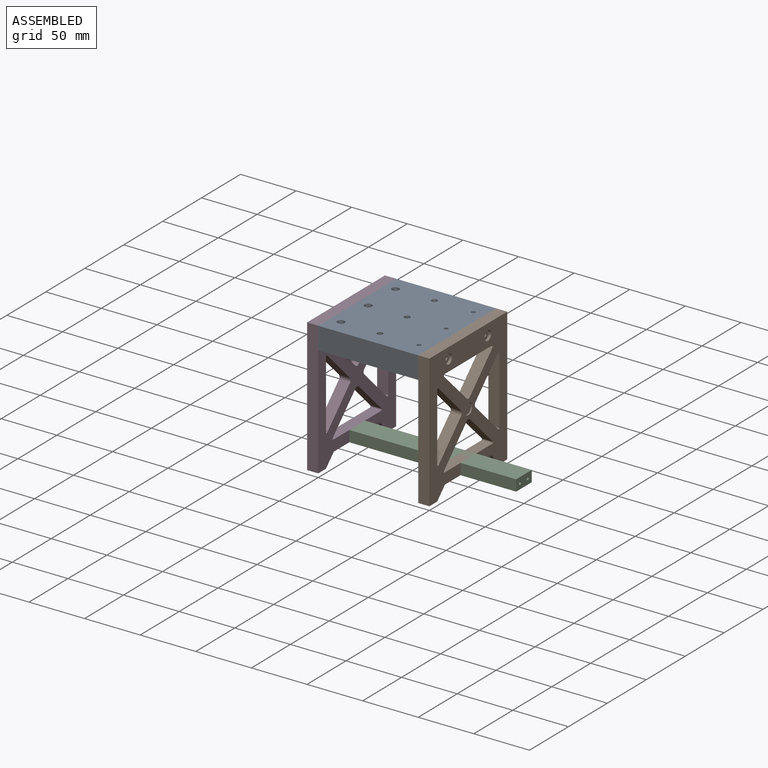
[diagram: assembled view]
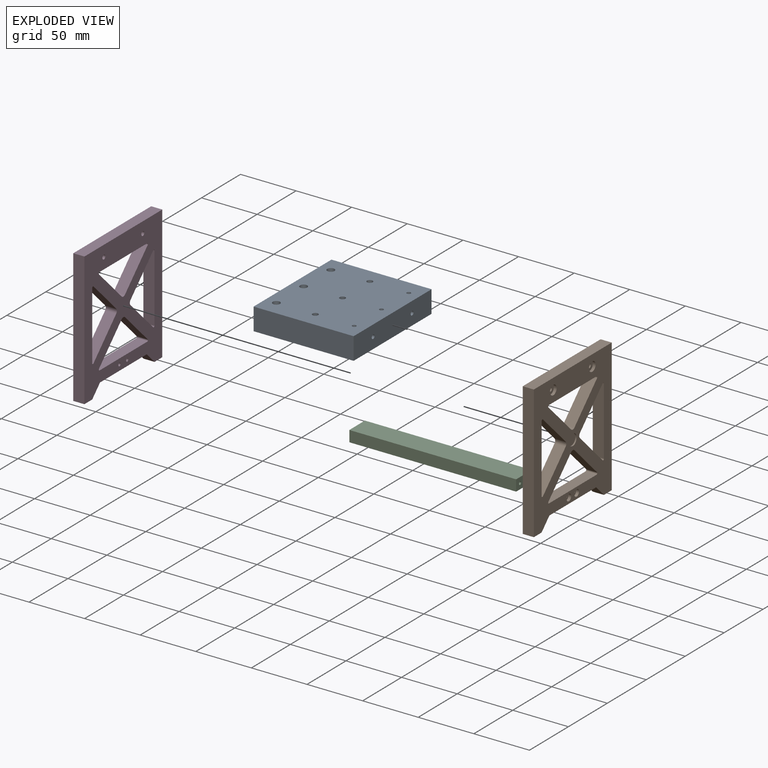
[diagram: exploded view]
GUIDED TOUR — MATED ASSEMBLY (Onshape document b0703bcb60bac2b01d767f9e, AutoMate assembly b0703bcb60bac2b01d767f9e_892648df07d9bb5ad0cc8fc4_770ecd6f2d148a60143b7bbd_default)

This assembly has 4 components, labeled P0..P3 below (a component is one placed occurrence of a part; the same part can appear more than once), held together by 3 mates. A mate is a constraint between two components; its type names the relative motion it leaves free:
  FASTENED — locks the two components together rigidly (no relative motion).
Axis/direction vectors are unit vectors and 'through' points are millimeter coordinates, both in the assembly's world frame.

MATES
  1. FASTENED "Fastened 2": P1 <-> P0, direction (-1.000, 0.000, 0.000) through (40.00, 25.00, 100.00) mm
  2. FASTENED "Fastened 3": P3 <-> P2, direction (1.000, 0.000, 0.000) through (-50.00, -5.00, 5.00) mm
  3. FASTENED "Fastened 1": P0 <-> P3, direction (-1.000, 0.000, 0.000) through (-50.00, -25.00, 100.00) mm

ASSEMBLY ORDER
  1. P2 — the base component [order verified]
  2. P1 [order verified]
  3. P0 [order verified]
  4. P3 [order verified]
Order-tag legend:
  [order verified] — this step's position reverses a verified removal order: the component was checked to insert without passing through the ones already placed.

Of the 4 components, 4 carry the full construction recipe — the FeatureScript program that regenerates the part's solid from scratch; the rest are supplied as boundary geometry only.
Each toured component is shown spotlighted twice — in the assembled view, then in the exploded view, where a leader line traces a displaced component back to its assembled socket (saturated green if recipe-attached, orange if geometry-only; every other component desaturated gray) — followed by its recipe or geometry summary and the mates that hold it.
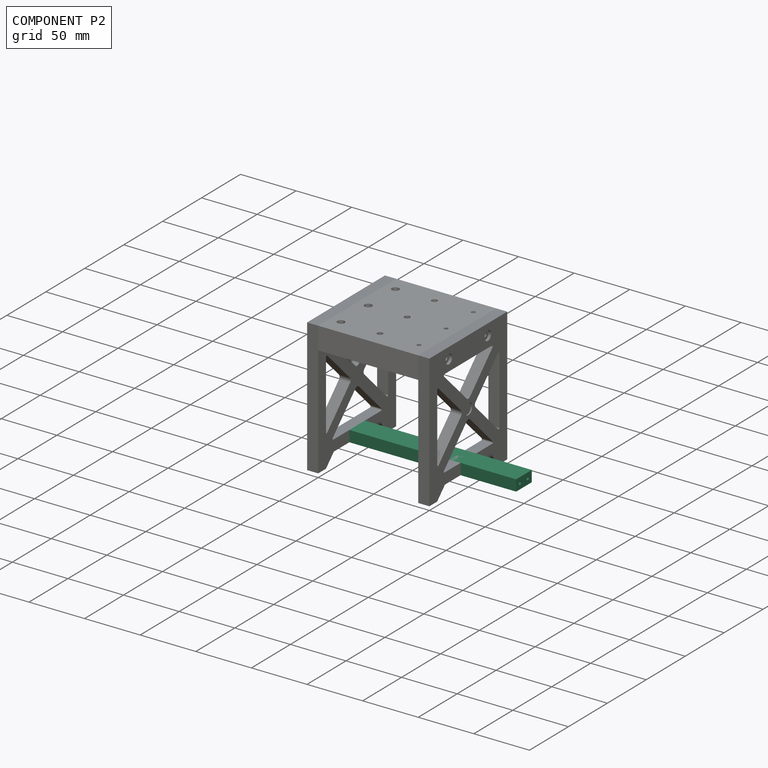
[diagram: component P2 — assembled]
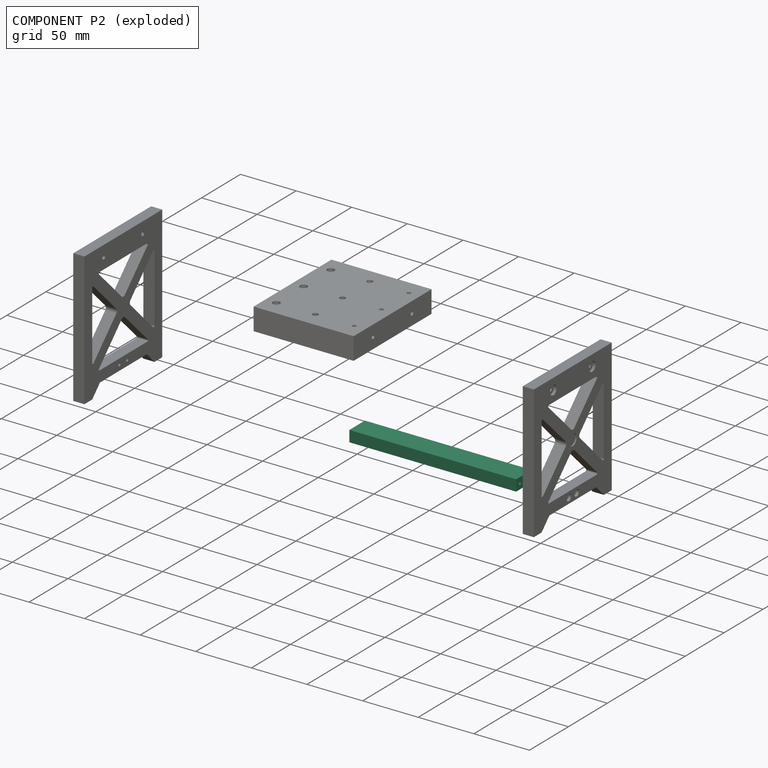
[diagram: component P2 — exploded]
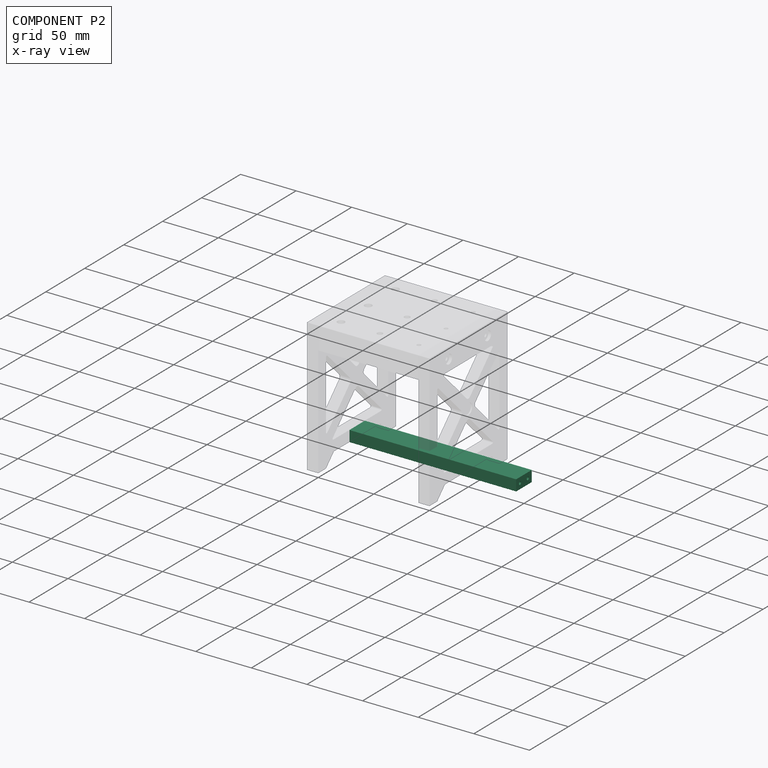
[diagram: component P2 — x-ray view]
COMPONENT P2 — recipe-attached (CADFS 00745035, mesh-verified: the recipe's output STEP matches this component's geometry to below the mesh-comparison resolution (tessellation chordal tolerance ~0.227 mm)).
Held by: FASTENED mate "Fastened 3" to P3.
Construction recipe (FeatureScript — the CAD program that rebuilds this solid; sketch coordinates are in the units given by the * unit suffixes, e.g. mm):

FeatureScript 1511;
import(path : "onshape/std/geometry.fs", version : "1511.0");
import(path : "onshape/std/common.fs", version : "1511.0");
const mm = millimeter;
const VERTEX = EntityType.VERTEX;
const EDGE = EntityType.EDGE;
const FACE = EntityType.FACE;
const BODY = EntityType.BODY;
function v(x, y){return vector(x, y);}
function OD(order){return orderDisambiguation(order);}
function OSD(set){return originalSetDisambiguation(set);}
function TD(topology){return topologyDisambiguation(topology);}
function TDD(query){return trueDependencyDisambiguation(query);}
function sQuery(a, b, c) {return sketchEntityQuery(a, b, c);}

annotation { "Feature Type Name" : "Feature", "Feature Type Description" : "" }
export const myFeature = defineFeature(function(context is Context, id is Id, definition is map)
    precondition{}
    {
        {
            var Q0;
            Q0=qCreatedBy(makeId("Top.planeOp"),FACE);
            var sketch = newSketch(context, id + "F0", { "sketchPlane" : qUnion([Q0])});
            skLineSegment(sketch, "E0.bottom", {"start": v(75, -10) * mm, "end": v(-75, -10) * mm});
            skLineSegment(sketch, "E0.top", {"start": v(75, 10) * mm, "end": v(-75, 10) * mm});
            skLineSegment(sketch, "E0.left", {"start": v(75, -10) * mm, "end": v(75, 10) * mm});
            skLineSegment(sketch, "E0.right", {"start": v(-75, -10) * mm, "end": v(-75, 10) * mm});
            skPoint(sketch, "E0.middle", {"position": v(0, 0) * mm});
            skSolve(sketch);
        }
        {
            var Q0;
            Q0=makeQuery(id+"F0.imprint","IMPRINT",FACE,{"disambiguationData":[TD([[makeQuery(id+"F0.imprint","IMPRINT",EDGE,{"derivedFrom":sQuery(id+"F0.wireOp",EDGE,"E0.bottom")}),-1.0]])]});
            extrude(context, id + "F1", {"entities" : qUnion([Q0]), "depth" : 10 * mm, "offsetDistance" : 25 * mm});
        }
        {
            var Q0;
            Q0=makeQuery(id+"F1.opExtrude","SWEPT_FACE",FACE,{"disambiguationData":[OSD([sQuery(id+"F0.wireOp",EDGE,"E0.right")])]});
            var sketch = newSketch(context, id + "F2", { "sketchPlane" : qUnion([Q0])});
            skLineSegment(sketch, "E1", {"start": v(-10, 5) * mm, "end": v(10, 5) * mm, "construction": true});
            skPoint(sketch, "E2", {"position": v(-5, 5) * mm});
            skPoint(sketch, "E3", {"position": v(5, 5) * mm});
            skSolve(sketch);
        }
        {
            var Q0;
            Q0=sQuery(id+"F2.wireOp",VERTEX,"E2");
            var Q1;
            Q1=sQuery(id+"F2.wireOp",VERTEX,"E3");
            var Q2;
            Q2=makeQuery(id+"F1.opExtrude","SWEPT_BODY",BODY,{"disambiguationData":[OSD([sQuery(id+"F0.wireOp",EDGE,"E0.bottom"),sQuery(id+"F0.wireOp",EDGE,"E0.top"),sQuery(id+"F0.wireOp",EDGE,"E0.left"),sQuery(id+"F0.wireOp",EDGE,"E0.right")])]});
            hole(context, id + "F3", {"style" : HoleStyle.SIMPLE, "endStyle" : HoleEndStyle.BLIND, "holeDiameter" : 2.8 * mm, "majorDiameter" : 5 * mm, "holeDepth" : 7 * mm, "isTappedThrough" : true, "tappedDepth" : 6 * mm, "tapClearance" : 3, "locations" : qUnion([Q0, Q1]), "scope" : qUnion([Q2])});
        }
        {
            var Q0;
            Q0=makeQuery(id+"F1.opExtrude","SWEPT_FACE",FACE,{"disambiguationData":[OSD([sQuery(id+"F0.wireOp",EDGE,"E0.left")])]});
            var sketch = newSketch(context, id + "F4", { "sketchPlane" : qUnion([Q0])});
            skPoint(sketch, "E4", {"position": v(-5, 5) * mm});
            skPoint(sketch, "E4.positionSnap0", {"position": v(-10, 5) * mm});
            skPoint(sketch, "E5", {"position": v(5, 5) * mm});
            skPoint(sketch, "E5.positionSnap0", {"position": v(10, 5) * mm});
            skSolve(sketch);
        }
        {
            var Q0;
            Q0=sQuery(id+"F4.wireOp",VERTEX,"E4");
            var Q1;
            Q1=sQuery(id+"F4.wireOp",VERTEX,"E5");
            var Q2;
            Q2=makeQuery(id+"F1.opExtrude","SWEPT_BODY",BODY,{"disambiguationData":[OSD([sQuery(id+"F0.wireOp",EDGE,"E0.bottom"),sQuery(id+"F0.wireOp",EDGE,"E0.top"),sQuery(id+"F0.wireOp",EDGE,"E0.left"),sQuery(id+"F0.wireOp",EDGE,"E0.right")])]});
            hole(context, id + "F5", {"style" : HoleStyle.SIMPLE, "endStyle" : HoleEndStyle.BLIND, "holeDiameter" : 2.8 * mm, "majorDiameter" : 5 * mm, "holeDepth" : 7 * mm, "isTappedThrough" : true, "tappedDepth" : 6 * mm, "tapClearance" : 3, "locations" : qUnion([Q0, Q1]), "scope" : qUnion([Q2])});
        }
    });
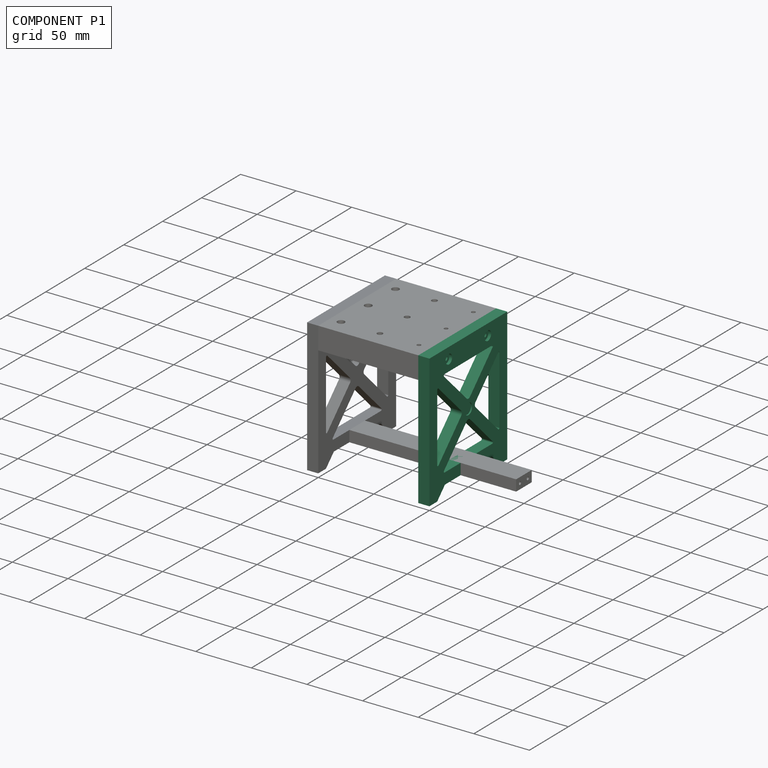
[diagram: component P1 — assembled]
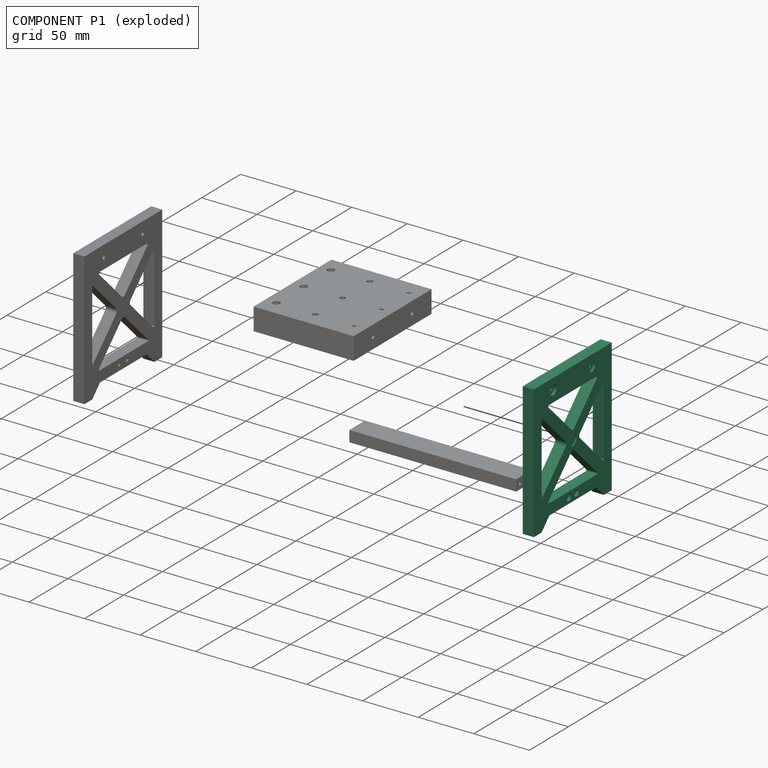
[diagram: component P1 — exploded]
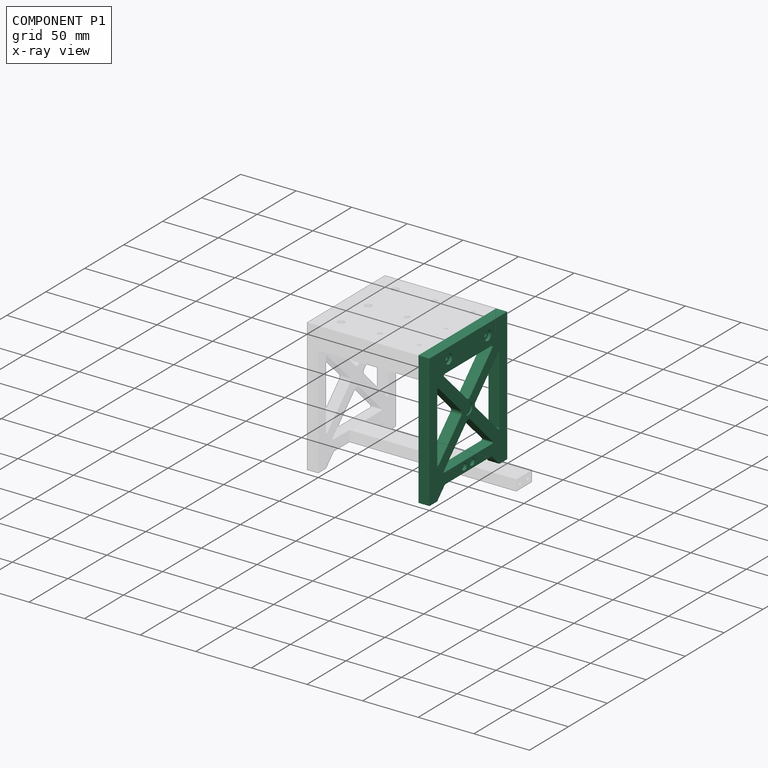
[diagram: component P1 — x-ray view]
COMPONENT P1 — recipe-attached (CADFS 00745030, mesh-verified: the recipe's output STEP matches this component's geometry to below the mesh-comparison resolution (tessellation chordal tolerance ~0.235 mm)).
Held by: FASTENED mate "Fastened 2" to P0.
Construction recipe (FeatureScript — the CAD program that rebuilds this solid; sketch coordinates are in the units given by the * unit suffixes, e.g. mm):

FeatureScript 1511;
import(path : "onshape/std/geometry.fs", version : "1511.0");
import(path : "onshape/std/common.fs", version : "1511.0");
const mm = millimeter;
const VERTEX = EntityType.VERTEX;
const EDGE = EntityType.EDGE;
const FACE = EntityType.FACE;
const BODY = EntityType.BODY;
function v(x, y){return vector(x, y);}
function OD(order){return orderDisambiguation(order);}
function OSD(set){return originalSetDisambiguation(set);}
function TD(topology){return topologyDisambiguation(topology);}
function TDD(query){return trueDependencyDisambiguation(query);}
function sQuery(a, b, c) {return sketchEntityQuery(a, b, c);}

annotation { "Feature Type Name" : "Feature", "Feature Type Description" : "" }
export const myFeature = defineFeature(function(context is Context, id is Id, definition is map)
    precondition{}
    {
        {
            var Q0;
            Q0=qCreatedBy(makeId("Right.planeOp"),FACE);
            var sketch = newSketch(context, id + "F0", { "sketchPlane" : qUnion([Q0])});
            skLineSegment(sketch, "E0.bottom", {"start": v(50, -60) * mm, "end": v(40.05, -60) * mm});
            skLineSegment(sketch, "E0.top", {"start": v(50, 60) * mm, "end": v(-50, 60) * mm});
            skLineSegment(sketch, "E0.left", {"start": v(50, -60) * mm, "end": v(50, 60) * mm});
            skLineSegment(sketch, "E0.right", {"start": v(-50, -60) * mm, "end": v(-50, 60) * mm});
            skPoint(sketch, "E0.middle", {"position": v(0, 0) * mm});
            skLineSegment(sketch, "E1.bottom", {"start": v(40, -40) * mm, "end": v(-32.93, -40) * mm});
            skLineSegment(sketch, "E1.top", {"start": v(32.93, 40) * mm, "end": v(-32.93, 40) * mm});
            skLineSegment(sketch, "E1.left", {"start": v(40, -40) * mm, "end": v(40, 32.93) * mm});
            skLineSegment(sketch, "E1.right", {"start": v(-40, -32.93) * mm, "end": v(-40, 32.93) * mm});
            skLineSegment(sketch, "E2.trimOffspring", {"start": v(-40, -60) * mm, "end": v(-50, -60) * mm});
            skLineSegment(sketch, "E3", {"start": v(30.05, -50) * mm, "end": v(40.05, -60) * mm});
            skLineSegment(sketch, "E4", {"start": v(30.05, -50) * mm, "end": v(-29.95, -50) * mm});
            skLineSegment(sketch, "E5", {"start": v(-29.95, -50) * mm, "end": v(-40, -60) * mm});
            skLineSegment(sketch, "E6", {"start": v(-40, -32.93) * mm, "end": v(-9.2, -2.12) * mm});
            skLineSegment(sketch, "E7.MirrorCS", {"start": v(-32.93, -40) * mm, "end": v(-2.12, -9.2) * mm});
            skLineSegment(sketch, "E8.trimOffspring", {"start": v(-40, 32.93) * mm, "end": v(-9.2, 2.12) * mm});
            skLineSegment(sketch, "E9.MirrorCS", {"start": v(-32.93, 40) * mm, "end": v(-2.12, 9.2) * mm});
            skLineSegment(sketch, "E10.trimOffspring", {"start": v(9.2, 2.12) * mm, "end": v(40, 32.93) * mm});
            skLineSegment(sketch, "E11.trimOffspring", {"start": v(2.12, -9.2) * mm, "end": v(32.93, -40) * mm});
            skLineSegment(sketch, "E12.trimOffspring", {"start": v(9.2, -2.12) * mm, "end": v(40, -32.93) * mm});
            skLineSegment(sketch, "E13.trimOffspring", {"start": v(2.12, 9.2) * mm, "end": v(32.93, 40) * mm});
            skPoint(sketch, "E14.visualSharp", {"position": v(0, 7.07) * mm});
            skArc(sketch, "E14.filletArc", {"start": v(-2.12, 9.2) * mm, "mid": v(0, 8.31) * mm, "end": v(2.12, 9.2) * mm});
            skPoint(sketch, "E15.visualSharp", {"position": v(0, -7.07) * mm});
            skArc(sketch, "E15.filletArc", {"start": v(2.12, -9.2) * mm, "mid": v(0, -8.31) * mm, "end": v(-2.12, -9.2) * mm});
            skPoint(sketch, "E16.visualSharp", {"position": v(7.07, 0) * mm});
            skArc(sketch, "E16.filletArc", {"start": v(9.2, 2.12) * mm, "mid": v(8.31, 0) * mm, "end": v(9.2, -2.12) * mm});
            skPoint(sketch, "E17.visualSharp", {"position": v(-7.07, 0) * mm});
            skArc(sketch, "E17.filletArc", {"start": v(-9.2, -2.12) * mm, "mid": v(-8.31, 0) * mm, "end": v(-9.2, 2.12) * mm});
            skLineSegment(sketch, "E18", {"start": v(81.83, 50) * mm, "end": v(-92.03, 50) * mm, "construction": true});
            skPoint(sketch, "E19", {"position": v(25, 50) * mm});
            skPoint(sketch, "E20", {"position": v(-25, 50) * mm});
            skSolve(sketch);
        }
        {
            var Q0;
            Q0 = qSketchRegion(id + "F0", true);
            extrude(context, id + "F1", {"entities" : qUnion([Q0]), "depth" : 10 * mm, "offsetDistance" : 25 * mm});
        }
        {
            var Q0;
            Q0=makeQuery(id+"F1.opExtrude","SWEPT_EDGE",EDGE,{"disambiguationData":[OSD([sQuery(id+"F0.wireOp",EDGE,"E1.top"),sQuery(id+"F0.wireOp",EDGE,"E9.MirrorCS")])]});
            var Q1;
            Q1=makeQuery(id+"F1.opExtrude","SWEPT_EDGE",EDGE,{"disambiguationData":[OSD([sQuery(id+"F0.wireOp",EDGE,"E1.top"),sQuery(id+"F0.wireOp",EDGE,"E13.trimOffspring")])]});
            var Q2;
            Q2=makeQuery(id+"F1.opExtrude","SWEPT_EDGE",EDGE,{"disambiguationData":[OSD([sQuery(id+"F0.wireOp",EDGE,"E1.right"),sQuery(id+"F0.wireOp",EDGE,"E8.trimOffspring")])]});
            var Q3;
            Q3=makeQuery(id+"F1.opExtrude","SWEPT_EDGE",EDGE,{"disambiguationData":[OSD([sQuery(id+"F0.wireOp",EDGE,"E1.right"),sQuery(id+"F0.wireOp",EDGE,"E6")])]});
            var Q4;
            Q4=makeQuery(id+"F1.opExtrude","SWEPT_EDGE",EDGE,{"disambiguationData":[OSD([sQuery(id+"F0.wireOp",EDGE,"E1.bottom"),sQuery(id+"F0.wireOp",EDGE,"E7.MirrorCS")])]});
            var Q5;
            Q5=makeQuery(id+"F1.opExtrude","SWEPT_EDGE",EDGE,{"disambiguationData":[OSD([sQuery(id+"F0.wireOp",EDGE,"E1.left"),sQuery(id+"F0.wireOp",EDGE,"E10.trimOffspring")])]});
            var Q6;
            Q6=makeQuery(id+"F1.opExtrude","SWEPT_EDGE",EDGE,{"disambiguationData":[OSD([sQuery(id+"F0.wireOp",EDGE,"E1.left"),sQuery(id+"F0.wireOp",EDGE,"E12.trimOffspring")])]});
            var Q7;
            Q7=makeQuery(id+"F1.opExtrude","SWEPT_EDGE",EDGE,{"disambiguationData":[OSD([sQuery(id+"F0.wireOp",EDGE,"E1.bottom"),sQuery(id+"F0.wireOp",EDGE,"E11.trimOffspring")])]});
            fillet(context, id + "F2", {"entities" : qUnion([Q0, Q1, Q2, Q3, Q4, Q5, Q6, Q7]), "radius" : 1 * mm, "tangentPropagation" : true, "allowEdgeOverflow" : false});
        }
        {
            var Q0;
            Q0=sQuery(id+"F0.wireOp",VERTEX,"E20");
            var Q1;
            Q1=sQuery(id+"F0.wireOp",VERTEX,"E19");
            var Q2;
            Q2=makeQuery(id+"F1.opExtrude","SWEPT_BODY",BODY,{"disambiguationData":[OSD([sQuery(id+"F0.wireOp",EDGE,"E0.bottom"),sQuery(id+"F0.wireOp",EDGE,"E0.top"),sQuery(id+"F0.wireOp",EDGE,"E0.left"),sQuery(id+"F0.wireOp",EDGE,"E0.right"),sQuery(id+"F0.wireOp",EDGE,"E1.bottom"),sQuery(id+"F0.wireOp",EDGE,"E1.top"),sQuery(id+"F0.wireOp",EDGE,"E1.left"),sQuery(id+"F0.wireOp",EDGE,"E1.right"),sQuery(id+"F0.wireOp",EDGE,"E2.trimOffspring"),sQuery(id+"F0.wireOp",EDGE,"E3"),sQuery(id+"F0.wireOp",EDGE,"E4"),sQuery(id+"F0.wireOp",EDGE,"E5"),sQuery(id+"F0.wireOp",EDGE,"E6"),sQuery(id+"F0.wireOp",EDGE,"E7.MirrorCS"),sQuery(id+"F0.wireOp",EDGE,"E8.trimOffspring"),sQuery(id+"F0.wireOp",EDGE,"E9.MirrorCS"),sQuery(id+"F0.wireOp",EDGE,"E10.trimOffspring"),sQuery(id+"F0.wireOp",EDGE,"E11.trimOffspring"),sQuery(id+"F0.wireOp",EDGE,"E12.trimOffspring"),sQuery(id+"F0.wireOp",EDGE,"E13.trimOffspring"),sQuery(id+"F0.wireOp",EDGE,"E14.filletArc"),sQuery(id+"F0.wireOp",EDGE,"E15.filletArc"),sQuery(id+"F0.wireOp",EDGE,"E16.filletArc"),sQuery(id+"F0.wireOp",EDGE,"E17.filletArc")])]});
            hole(context, id + "F3", {"style" : HoleStyle.C_BORE, "endStyle" : HoleEndStyle.THROUGH, "oppositeDirection" : true, "holeDiameter" : 3.8 * mm, "cBoreDiameter" : 8.5 * mm, "cBoreDepth" : 2.5 * mm, "majorDiameter" : 5 * mm, "isTappedThrough" : true, "tappedDepth" : 6 * mm, "tapClearance" : 3, "locations" : qUnion([Q0, Q1]), "scope" : qUnion([Q2])});
        }
        {
            var Q0;
            Q0=makeQuery(id+"F1.opExtrude","CAP_FACE",FACE,{"disambiguationData":[OSD([sQuery(id+"F0.wireOp",EDGE,"E0.bottom"),sQuery(id+"F0.wireOp",EDGE,"E0.top"),sQuery(id+"F0.wireOp",EDGE,"E0.left"),sQuery(id+"F0.wireOp",EDGE,"E0.right"),sQuery(id+"F0.wireOp",EDGE,"E1.bottom"),sQuery(id+"F0.wireOp",EDGE,"E1.top"),sQuery(id+"F0.wireOp",EDGE,"E1.left"),sQuery(id+"F0.wireOp",EDGE,"E1.right"),sQuery(id+"F0.wireOp",EDGE,"E2.trimOffspring"),sQuery(id+"F0.wireOp",EDGE,"E3"),sQuery(id+"F0.wireOp",EDGE,"E4"),sQuery(id+"F0.wireOp",EDGE,"E5"),sQuery(id+"F0.wireOp",EDGE,"E6"),sQuery(id+"F0.wireOp",EDGE,"E7.MirrorCS"),sQuery(id+"F0.wireOp",EDGE,"E8.trimOffspring"),sQuery(id+"F0.wireOp",EDGE,"E9.MirrorCS"),sQuery(id+"F0.wireOp",EDGE,"E10.trimOffspring"),sQuery(id+"F0.wireOp",EDGE,"E11.trimOffspring"),sQuery(id+"F0.wireOp",EDGE,"E12.trimOffspring"),sQuery(id+"F0.wireOp",EDGE,"E13.trimOffspring"),sQuery(id+"F0.wireOp",EDGE,"E14.filletArc"),sQuery(id+"F0.wireOp",EDGE,"E15.filletArc"),sQuery(id+"F0.wireOp",EDGE,"E16.filletArc"),sQuery(id+"F0.wireOp",EDGE,"E17.filletArc")])],"isStart":true});
            var sketch = newSketch(context, id + "F4", { "sketchPlane" : qUnion([Q0])});
            skCircle(sketch, "E21", {"center": v(0, 0) * mm, "radius": 5 * mm});
            skSolve(sketch);
        }
        {
            var Q0;
            Q0=makeQuery(id+"F4.imprint","IMPRINT",FACE,{"disambiguationData":[TD([[makeQuery(id+"F4.imprint","IMPRINT",EDGE,{"derivedFrom":sQuery(id+"F4.wireOp",EDGE,"E21")}),1.0]])]});
            extrude(context, id + "F5", {"entities" : qUnion([Q0]), "operationType" : NewBodyOperationType.REMOVE, "oppositeDirection" : true, "depth" : 1.2 * mm, "offsetDistance" : 25 * mm});
        }
        {
            var Q0;
            Q0=makeQuery(id+"F1.opExtrude","CAP_FACE",FACE,{"disambiguationData":[OSD([sQuery(id+"F0.wireOp",EDGE,"E0.bottom"),sQuery(id+"F0.wireOp",EDGE,"E0.top"),sQuery(id+"F0.wireOp",EDGE,"E0.left"),sQuery(id+"F0.wireOp",EDGE,"E0.right"),sQuery(id+"F0.wireOp",EDGE,"E1.bottom"),sQuery(id+"F0.wireOp",EDGE,"E1.top"),sQuery(id+"F0.wireOp",EDGE,"E1.left"),sQuery(id+"F0.wireOp",EDGE,"E1.right"),sQuery(id+"F0.wireOp",EDGE,"E2.trimOffspring"),sQuery(id+"F0.wireOp",EDGE,"E3"),sQuery(id+"F0.wireOp",EDGE,"E4"),sQuery(id+"F0.wireOp",EDGE,"E5"),sQuery(id+"F0.wireOp",EDGE,"E6"),sQuery(id+"F0.wireOp",EDGE,"E7.MirrorCS"),sQuery(id+"F0.wireOp",EDGE,"E8.trimOffspring"),sQuery(id+"F0.wireOp",EDGE,"E9.MirrorCS"),sQuery(id+"F0.wireOp",EDGE,"E10.trimOffspring"),sQuery(id+"F0.wireOp",EDGE,"E11.trimOffspring"),sQuery(id+"F0.wireOp",EDGE,"E12.trimOffspring"),sQuery(id+"F0.wireOp",EDGE,"E13.trimOffspring"),sQuery(id+"F0.wireOp",EDGE,"E14.filletArc"),sQuery(id+"F0.wireOp",EDGE,"E15.filletArc"),sQuery(id+"F0.wireOp",EDGE,"E16.filletArc"),sQuery(id+"F0.wireOp",EDGE,"E17.filletArc")])],"isStart":true});
            var sketch = newSketch(context, id + "F6", { "sketchPlane" : qUnion([Q0])});
            skPoint(sketch, "E22.0", {"position": v(-50, 60) * mm});
            skPoint(sketch, "E22.1", {"position": v(50, 60) * mm});
            skPoint(sketch, "E22.2", {"position": v(-50, -60) * mm});
            skPoint(sketch, "E22.3", {"position": v(50, -60) * mm});
            skArc(sketch, "E23", {"start": v(-40.05, -60) * mm, "mid": v(-57.03, -67.03) * mm, "end": v(-50, -50.05) * mm});
            skArc(sketch, "E24", {"start": v(40, -60) * mm, "mid": v(57.07, -67.07) * mm, "end": v(50, -50) * mm});
            skArc(sketch, "E25", {"start": v(40, 60) * mm, "mid": v(57.07, 67.07) * mm, "end": v(50, 50) * mm});
            skArc(sketch, "E26", {"start": v(-50, 50) * mm, "mid": v(-57.07, 67.07) * mm, "end": v(-40, 60) * mm});
            skSolve(sketch);
        }
        {
            var Q0;
            {var subQ0=sQuery(id+"F0.wireOp",EDGE,"E0.left");var subQ1=sQuery(id+"F0.wireOp",EDGE,"E0.top");var subQ2=sQuery(id+"F0.wireOp",EDGE,"E0.right");var subQ3=sQuery(id+"F0.wireOp",EDGE,"E2.trimOffspring");var subQ4=sQuery(id+"F0.wireOp",EDGE,"E0.bottom");Q0=makeQuery(id+"FwKSpRcwW1PzX61_1.boolean.opBoolean","MERGE",FACE,{"derivedFrom":[makeQuery(id+"F1.opExtrude","CAP_FACE",FACE,{"disambiguationData":[OSD([subQ4,subQ1,subQ0,subQ2,sQuery(id+"F0.wireOp",EDGE,"E1.bottom"),sQuery(id+"F0.wireOp",EDGE,"E1.top"),sQuery(id+"F0.wireOp",EDGE,"E1.left"),sQuery(id+"F0.wireOp",EDGE,"E1.right"),subQ3,sQuery(id+"F0.wireOp",EDGE,"E3"),sQuery(id+"F0.wireOp",EDGE,"E4"),sQuery(id+"F0.wireOp",EDGE,"E5"),sQuery(id+"F0.wireOp",EDGE,"E6"),sQuery(id+"F0.wireOp",EDGE,"E7.MirrorCS"),sQuery(id+"F0.wireOp",EDGE,"E8.trimOffspring"),sQuery(id+"F0.wireOp",EDGE,"E9.MirrorCS"),sQuery(id+"F0.wireOp",EDGE,"E10.trimOffspring"),sQuery(id+"F0.wireOp",EDGE,"E11.trimOffspring"),sQuery(id+"F0.wireOp",EDGE,"E12.trimOffspring"),sQuery(id+"F0.wireOp",EDGE,"E13.trimOffspring"),sQuery(id+"F0.wireOp",EDGE,"E14.filletArc"),sQuery(id+"F0.wireOp",EDGE,"E15.filletArc"),sQuery(id+"F0.wireOp",EDGE,"E16.filletArc"),sQuery(id+"F0.wireOp",EDGE,"E17.filletArc")])],"isStart":true}),makeQuery(id+"FwKSpRcwW1PzX61_1.opExtrude","CAP_FACE",FACE,{"disambiguationData":[OSD([subQ4,subQ0,sQuery(id+"F6.wireOp",EDGE,"E23")])],"isStart":true}),makeQuery(id+"FwKSpRcwW1PzX61_1.opExtrude","CAP_FACE",FACE,{"disambiguationData":[OSD([subQ2,subQ3,sQuery(id+"F6.wireOp",EDGE,"E24")])],"isStart":true}),makeQuery(id+"FwKSpRcwW1PzX61_1.opExtrude","CAP_FACE",FACE,{"disambiguationData":[OSD([subQ1,subQ2,sQuery(id+"F6.wireOp",EDGE,"E25")])],"isStart":true}),makeQuery(id+"FwKSpRcwW1PzX61_1.opExtrude","CAP_FACE",FACE,{"disambiguationData":[OSD([subQ1,subQ0,sQuery(id+"F6.wireOp",EDGE,"E26")])],"isStart":true})]});}
            var sketch = newSketch(context, id + "F7", { "sketchPlane" : qUnion([Q0])});
            skPoint(sketch, "E27", {"position": v(-5, -45) * mm});
            skPoint(sketch, "E28.MirrorP", {"position": v(5, -45) * mm});
            skSolve(sketch);
        }
        {
            var Q0;
            Q0=sQuery(id+"F7.wireOp",VERTEX,"E27");
            var Q1;
            Q1=sQuery(id+"F7.wireOp",VERTEX,"E28.MirrorP");
            var Q2;
            Q2=makeQuery(id+"F1.opExtrude","SWEPT_BODY",BODY,{"disambiguationData":[OSD([sQuery(id+"F0.wireOp",EDGE,"E0.bottom"),sQuery(id+"F0.wireOp",EDGE,"E0.top"),sQuery(id+"F0.wireOp",EDGE,"E0.left"),sQuery(id+"F0.wireOp",EDGE,"E0.right"),sQuery(id+"F0.wireOp",EDGE,"E1.bottom"),sQuery(id+"F0.wireOp",EDGE,"E1.top"),sQuery(id+"F0.wireOp",EDGE,"E1.left"),sQuery(id+"F0.wireOp",EDGE,"E1.right"),sQuery(id+"F0.wireOp",EDGE,"E2.trimOffspring"),sQuery(id+"F0.wireOp",EDGE,"E3"),sQuery(id+"F0.wireOp",EDGE,"E4"),sQuery(id+"F0.wireOp",EDGE,"E5"),sQuery(id+"F0.wireOp",EDGE,"E6"),sQuery(id+"F0.wireOp",EDGE,"E7.MirrorCS"),sQuery(id+"F0.wireOp",EDGE,"E8.trimOffspring"),sQuery(id+"F0.wireOp",EDGE,"E9.MirrorCS"),sQuery(id+"F0.wireOp",EDGE,"E10.trimOffspring"),sQuery(id+"F0.wireOp",EDGE,"E11.trimOffspring"),sQuery(id+"F0.wireOp",EDGE,"E12.trimOffspring"),sQuery(id+"F0.wireOp",EDGE,"E13.trimOffspring"),sQuery(id+"F0.wireOp",EDGE,"E14.filletArc"),sQuery(id+"F0.wireOp",EDGE,"E15.filletArc"),sQuery(id+"F0.wireOp",EDGE,"E16.filletArc"),sQuery(id+"F0.wireOp",EDGE,"E17.filletArc")])]});
            hole(context, id + "F8", {"style" : HoleStyle.C_BORE, "endStyle" : HoleEndStyle.THROUGH, "holeDiameter" : 2.8 * mm, "cBoreDiameter" : 6 * mm, "cBoreDepth" : 2.5 * mm, "majorDiameter" : 5 * mm, "isTappedThrough" : true, "tappedDepth" : 6 * mm, "tapClearance" : 3, "locations" : qUnion([Q0, Q1]), "scope" : qUnion([Q2])});
        }
    });
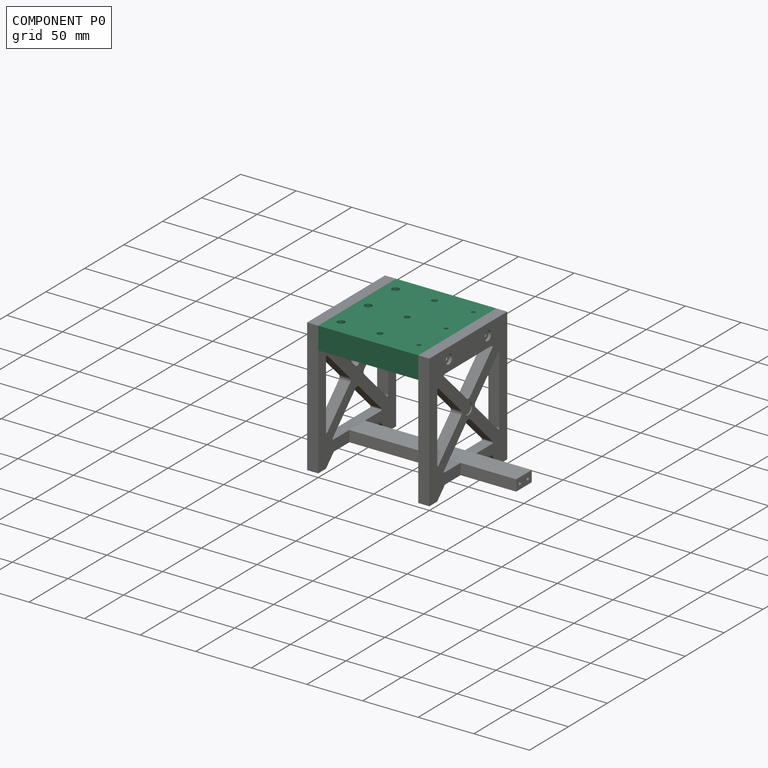
[diagram: component P0 — assembled]
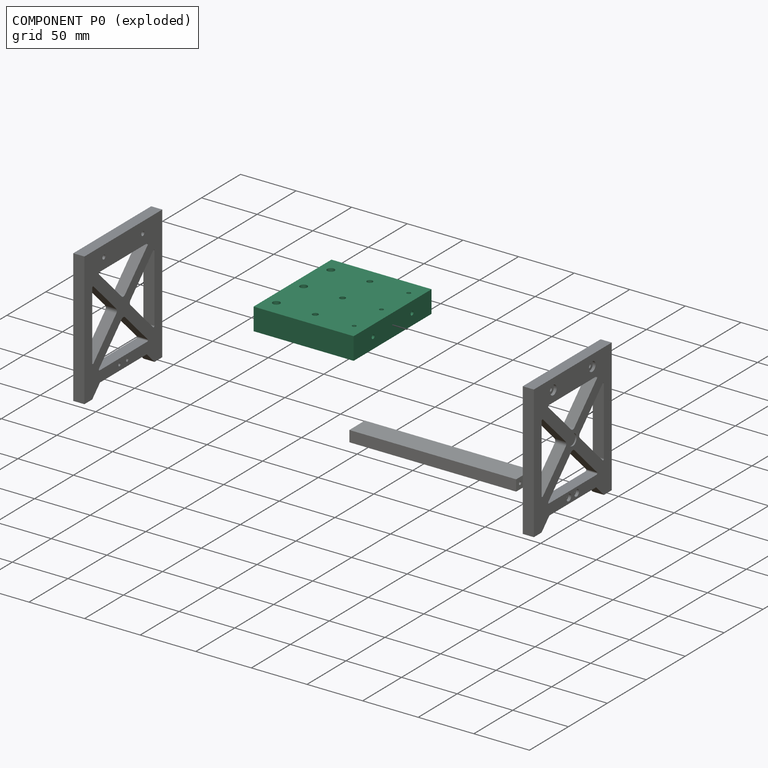
[diagram: component P0 — exploded]
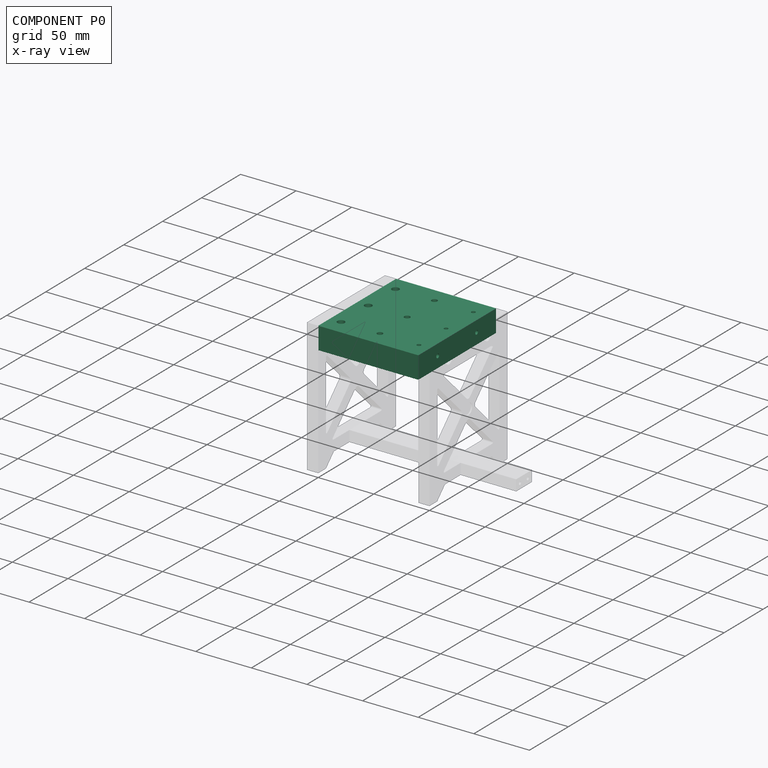
[diagram: component P0 — x-ray view]
COMPONENT P0 — recipe-attached (CADFS 00745013, mesh-verified: the recipe's output STEP matches this component's geometry to below the mesh-comparison resolution (tessellation chordal tolerance ~0.204 mm)).
Held by: FASTENED mate "Fastened 2" to P1; FASTENED mate "Fastened 1" to P3.
Construction recipe (FeatureScript — the CAD program that rebuilds this solid; sketch coordinates are in the units given by the * unit suffixes, e.g. mm):

FeatureScript 1511;
import(path : "onshape/std/geometry.fs", version : "1511.0");
import(path : "onshape/std/common.fs", version : "1511.0");
const mm = millimeter;
const VERTEX = EntityType.VERTEX;
const EDGE = EntityType.EDGE;
const FACE = EntityType.FACE;
const BODY = EntityType.BODY;
function v(x, y){return vector(x, y);}
function OD(order){return orderDisambiguation(order);}
function OSD(set){return originalSetDisambiguation(set);}
function TD(topology){return topologyDisambiguation(topology);}
function TDD(query){return trueDependencyDisambiguation(query);}
function sQuery(a, b, c) {return sketchEntityQuery(a, b, c);}

annotation { "Feature Type Name" : "Feature", "Feature Type Description" : "" }
export const myFeature = defineFeature(function(context is Context, id is Id, definition is map)
    precondition{}
    {
        {
            var Q0;
            Q0=qCreatedBy(makeId("Top.planeOp"),FACE);
            var sketch = newSketch(context, id + "F0", { "sketchPlane" : qUnion([Q0])});
            skLineSegment(sketch, "E0.bottom", {"start": v(45, -50) * mm, "end": v(-45, -50) * mm});
            skLineSegment(sketch, "E0.top", {"start": v(45, 50) * mm, "end": v(-45, 50) * mm});
            skLineSegment(sketch, "E0.left", {"start": v(45, -50) * mm, "end": v(45, 50) * mm});
            skLineSegment(sketch, "E0.right", {"start": v(-45, -50) * mm, "end": v(-45, 50) * mm});
            skPoint(sketch, "E0.middle", {"position": v(0, 0) * mm});
            skPoint(sketch, "E1", {"position": v(-35, 0) * mm});
            skPoint(sketch, "E2", {"position": v(35, 0) * mm});
            skPoint(sketch, "E3.0.1.0", {"position": v(-35, 35) * mm});
            skPoint(sketch, "E3.0.1.1", {"position": v(0, 35) * mm});
            skPoint(sketch, "E3.0.1.2", {"position": v(35, 35) * mm});
            skPoint(sketch, "E3.0.1.3", {"position": v(0, 35) * mm});
            skPoint(sketch, "E3.1.0.0", {"position": v(-35, -35) * mm});
            skPoint(sketch, "E3.1.0.1", {"position": v(0, -35) * mm});
            skPoint(sketch, "E3.1.0.2", {"position": v(35, -35) * mm});
            skPoint(sketch, "E3.1.0.3", {"position": v(0, -35) * mm});
            skLineSegment(sketch, "E3.direction1", {"start": v(-35, 0) * mm, "end": v(-35, -35) * mm, "construction": true});
            skLineSegment(sketch, "E3.direction2", {"start": v(-35, 0) * mm, "end": v(-35, 35) * mm, "construction": true});
            skSolve(sketch);
        }
        {
            var Q0;
            Q0=makeQuery(id+"F0.imprint","IMPRINT",FACE,{"disambiguationData":[TD([[makeQuery(id+"F0.imprint","IMPRINT",EDGE,{"derivedFrom":sQuery(id+"F0.wireOp",EDGE,"E0.bottom")}),-1.0]])]});
            extrude(context, id + "F1", {"entities" : qUnion([Q0]), "oppositeDirection" : true, "depth" : 20 * mm, "offsetDistance" : 25 * mm});
        }
        {
            var Q0;
            Q0=sQuery(id+"F0.wireOp",VERTEX,"E3.0.1.0");
            var Q1;
            Q1=sQuery(id+"F0.wireOp",VERTEX,"E1");
            var Q2;
            Q2=sQuery(id+"F0.wireOp",VERTEX,"E3.1.0.0");
            var Q3;
            Q3=makeQuery(id+"F1.opExtrude","SWEPT_BODY",BODY,{"disambiguationData":[OSD([sQuery(id+"F0.wireOp",EDGE,"E0.bottom"),sQuery(id+"F0.wireOp",EDGE,"E0.top"),sQuery(id+"F0.wireOp",EDGE,"E0.left"),sQuery(id+"F0.wireOp",EDGE,"E0.right")])]});
            hole(context, id + "F2", {"style" : HoleStyle.SIMPLE, "endStyle" : HoleEndStyle.THROUGH, "holeDiameter" : 6.5 * mm, "majorDiameter" : 5 * mm, "isTappedThrough" : true, "tappedDepth" : 6 * mm, "tapClearance" : 3, "locations" : qUnion([Q0, Q1, Q2]), "scope" : qUnion([Q3])});
        }
        {
            var Q0;
            Q0=sQuery(id+"F0.wireOp",VERTEX,"E3.0.1.1");
            var Q1;
            Q1=sQuery(id+"F0.wireOp",VERTEX,"E0.middle");
            var Q2;
            Q2=sQuery(id+"F0.wireOp",VERTEX,"E3.1.0.1");
            var Q3;
            Q3=makeQuery(id+"F1.opExtrude","SWEPT_BODY",BODY,{"disambiguationData":[OSD([sQuery(id+"F0.wireOp",EDGE,"E0.bottom"),sQuery(id+"F0.wireOp",EDGE,"E0.top"),sQuery(id+"F0.wireOp",EDGE,"E0.left"),sQuery(id+"F0.wireOp",EDGE,"E0.right")])]});
            hole(context, id + "F3", {"style" : HoleStyle.SIMPLE, "endStyle" : HoleEndStyle.THROUGH, "holeDiameter" : 5 * mm, "majorDiameter" : 5 * mm, "isTappedThrough" : true, "tappedDepth" : 6 * mm, "tapClearance" : 3, "locations" : qUnion([Q0, Q1, Q2]), "scope" : qUnion([Q3])});
        }
        {
            var Q0;
            Q0=sQuery(id+"F0.wireOp",VERTEX,"E3.0.1.2");
            var Q1;
            Q1=sQuery(id+"F0.wireOp",VERTEX,"E2");
            var Q2;
            Q2=sQuery(id+"F0.wireOp",VERTEX,"E3.1.0.2");
            var Q3;
            Q3=makeQuery(id+"F1.opExtrude","SWEPT_BODY",BODY,{"disambiguationData":[OSD([sQuery(id+"F0.wireOp",EDGE,"E0.bottom"),sQuery(id+"F0.wireOp",EDGE,"E0.top"),sQuery(id+"F0.wireOp",EDGE,"E0.left"),sQuery(id+"F0.wireOp",EDGE,"E0.right")])]});
            hole(context, id + "F4", {"style" : HoleStyle.SIMPLE, "endStyle" : HoleEndStyle.THROUGH, "holeDiameter" : 3.5 * mm, "majorDiameter" : 5 * mm, "isTappedThrough" : true, "tappedDepth" : 6 * mm, "tapClearance" : 3, "locations" : qUnion([Q0, Q1, Q2]), "scope" : qUnion([Q3])});
        }
        {
            var Q0;
            Q0=makeQuery(id+"F1.opExtrude","SWEPT_FACE",FACE,{"disambiguationData":[OSD([sQuery(id+"F0.wireOp",EDGE,"E0.right")])]});
            var sketch = newSketch(context, id + "F5", { "sketchPlane" : qUnion([Q0])});
            skLineSegment(sketch, "E4", {"start": v(-50, -10) * mm, "end": v(50, -10) * mm, "construction": true});
            skPoint(sketch, "E5", {"position": v(-25, -10) * mm});
            skPoint(sketch, "E6", {"position": v(25, -10) * mm});
            skSolve(sketch);
        }
        {
            var Q0;
            Q0=sQuery(id+"F5.wireOp",VERTEX,"E5");
            var Q1;
            Q1=sQuery(id+"F5.wireOp",VERTEX,"E6");
            var Q2;
            Q2=makeQuery(id+"F1.opExtrude","SWEPT_BODY",BODY,{"disambiguationData":[OSD([sQuery(id+"F0.wireOp",EDGE,"E0.bottom"),sQuery(id+"F0.wireOp",EDGE,"E0.top"),sQuery(id+"F0.wireOp",EDGE,"E0.left"),sQuery(id+"F0.wireOp",EDGE,"E0.right")])]});
            hole(context, id + "F6", {"style" : HoleStyle.SIMPLE, "endStyle" : HoleEndStyle.BLIND, "holeDiameter" : 3.6 * mm, "majorDiameter" : 5 * mm, "holeDepth" : 16 * mm, "isTappedThrough" : true, "tappedDepth" : 6 * mm, "tapClearance" : 3, "locations" : qUnion([Q0, Q1]), "scope" : qUnion([Q2])});
        }
        {
            var Q0;
            Q0=makeQuery(id+"F1.opExtrude","SWEPT_FACE",FACE,{"disambiguationData":[OSD([sQuery(id+"F0.wireOp",EDGE,"E0.left")])]});
            var sketch = newSketch(context, id + "F7", { "sketchPlane" : qUnion([Q0])});
            skLineSegment(sketch, "E7", {"start": v(-50, -10) * mm, "end": v(50, -10) * mm, "construction": true});
            skPoint(sketch, "E8", {"position": v(-25, -10) * mm});
            skPoint(sketch, "E9", {"position": v(25, -10) * mm});
            skSolve(sketch);
        }
        {
            var Q0;
            Q0=sQuery(id+"F7.wireOp",VERTEX,"E8");
            var Q1;
            Q1=sQuery(id+"F7.wireOp",VERTEX,"E9");
            var Q2;
            Q2=makeQuery(id+"F1.opExtrude","SWEPT_BODY",BODY,{"disambiguationData":[OSD([sQuery(id+"F0.wireOp",EDGE,"E0.bottom"),sQuery(id+"F0.wireOp",EDGE,"E0.top"),sQuery(id+"F0.wireOp",EDGE,"E0.left"),sQuery(id+"F0.wireOp",EDGE,"E0.right")])]});
            hole(context, id + "F8", {"style" : HoleStyle.SIMPLE, "endStyle" : HoleEndStyle.BLIND, "holeDiameter" : 3.6 * mm, "majorDiameter" : 5 * mm, "holeDepth" : 16 * mm, "isTappedThrough" : true, "tappedDepth" : 6 * mm, "tapClearance" : 3, "locations" : qUnion([Q0, Q1]), "scope" : qUnion([Q2])});
        }
    });
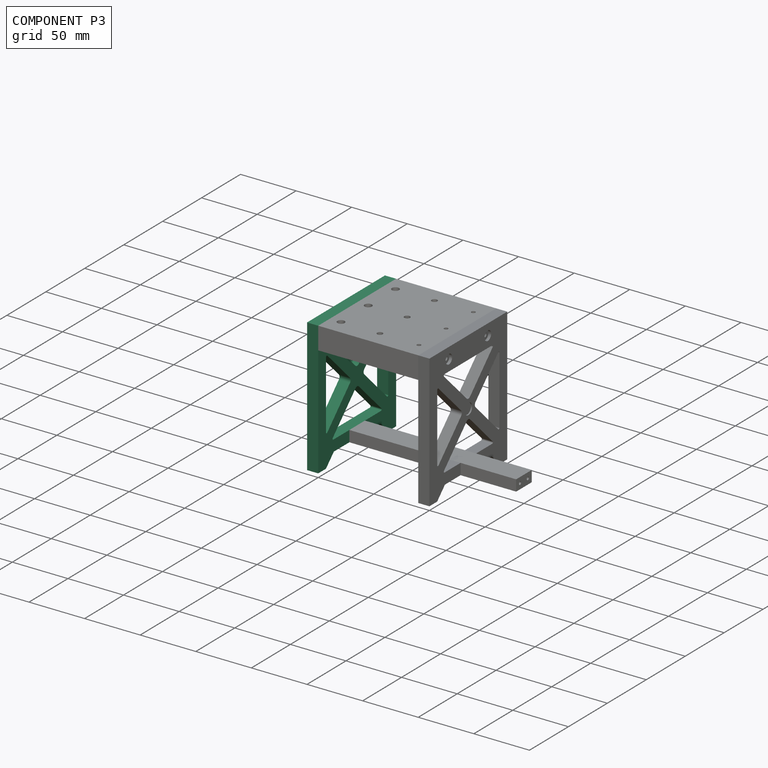
[diagram: component P3 — assembled]
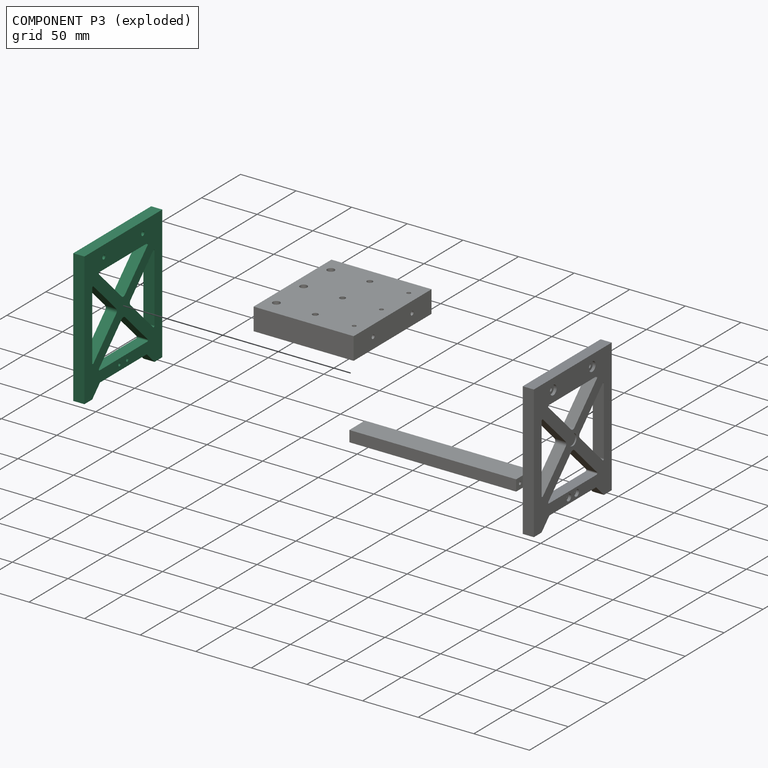
[diagram: component P3 — exploded]
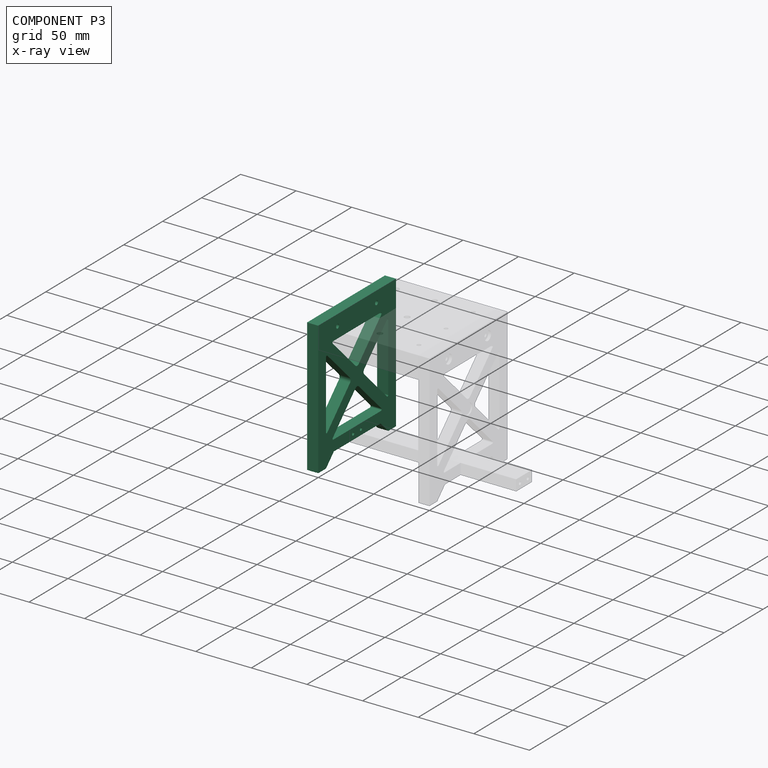
[diagram: component P3 — x-ray view]
COMPONENT P3 — same part as P1 (CADFS 00745030); its construction recipe is shown at P1.
Held by: FASTENED mate "Fastened 3" to P2; FASTENED mate "Fastened 1" to P0.
PROVENANCE & LICENSES
Assembly (occurrences, transforms, mates, per-part STEP geometry): AutoMate dataset, Zenodo record 7776208, CC0.
Construction recipes: CADFS (HuggingFace VladPyatov/CADFS, CC-BY-4.0, layered over the ABC dataset), FeatureScript reconstruction programs keyed by ABC model id.
Join: ABC meta listings map ABC model id -> Onshape documentId; within a shared document, parts are matched by geometric signature (bounding-box dims + volume at 0.1% relative tolerance, exact B-rep face/solid counts).
Verification: 4 of this assembly's 4 components carry a recipe attachment, and every attachment is mesh-verified: the CADFS STEP and the AutoMate member STEP were compared as meshes in their shared local frame (symmetric sampled-point-to-mesh distance); worst across the 4 attachments: below the mesh-comparison resolution (tessellation chordal tolerance ~0.235 mm) on a 157 mm part.
Renders: orthographic iso camera (az 35 / el 25); the floor grid conveys scale (grid pitch printed in each image; no ruler). In the exploded view each component is displaced by its stored offset vector: the offsets alone carry the explosion direction (mate normal/axis signs are not orientation cues and do not encode it), and separation distances are assigned per mate-chain, not proportionally to assembly-order depth.
